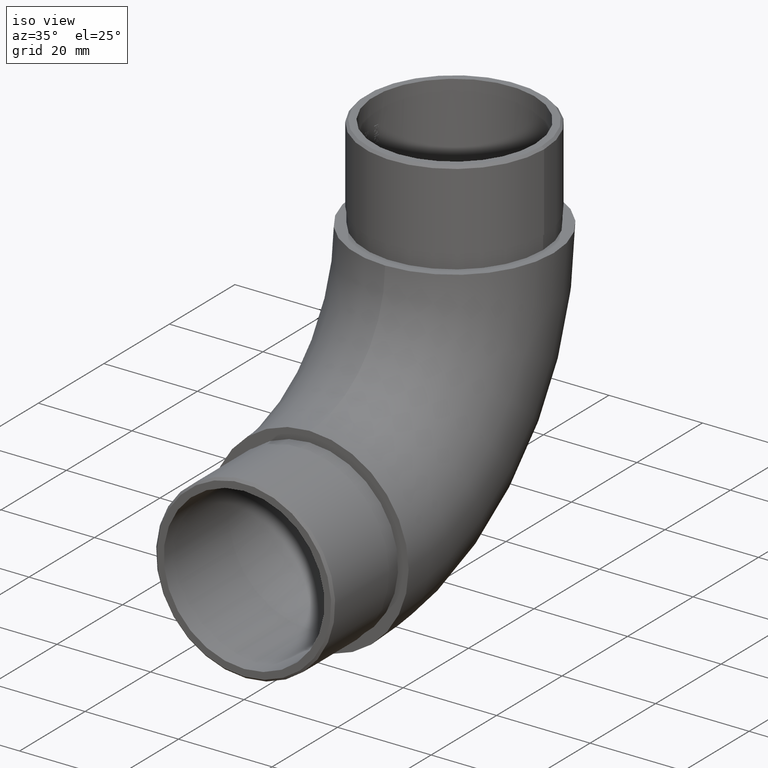
[diagram: clean part render]
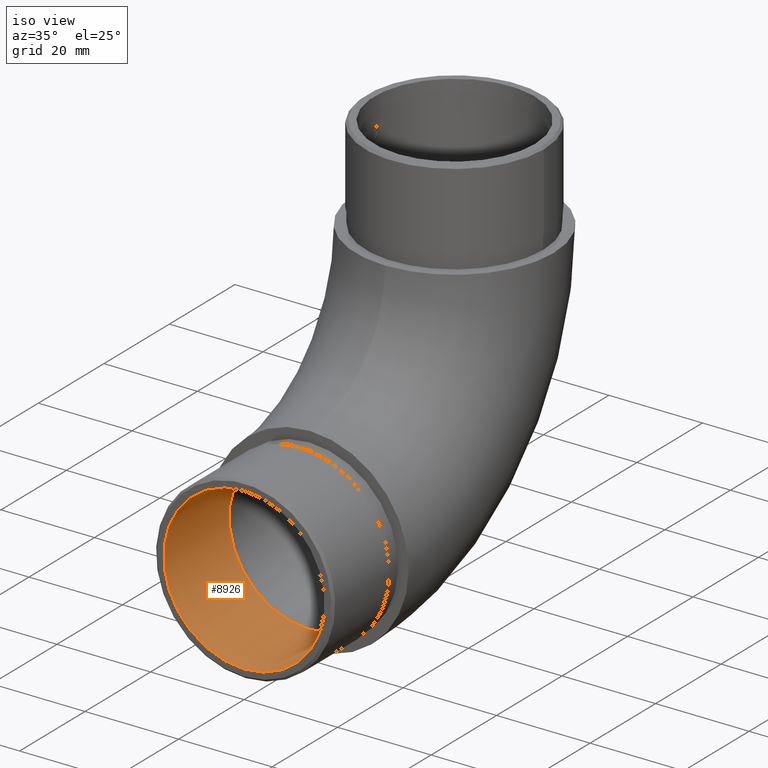
[diagram: same view with one face highlighted and labeled with its STEP entity id]
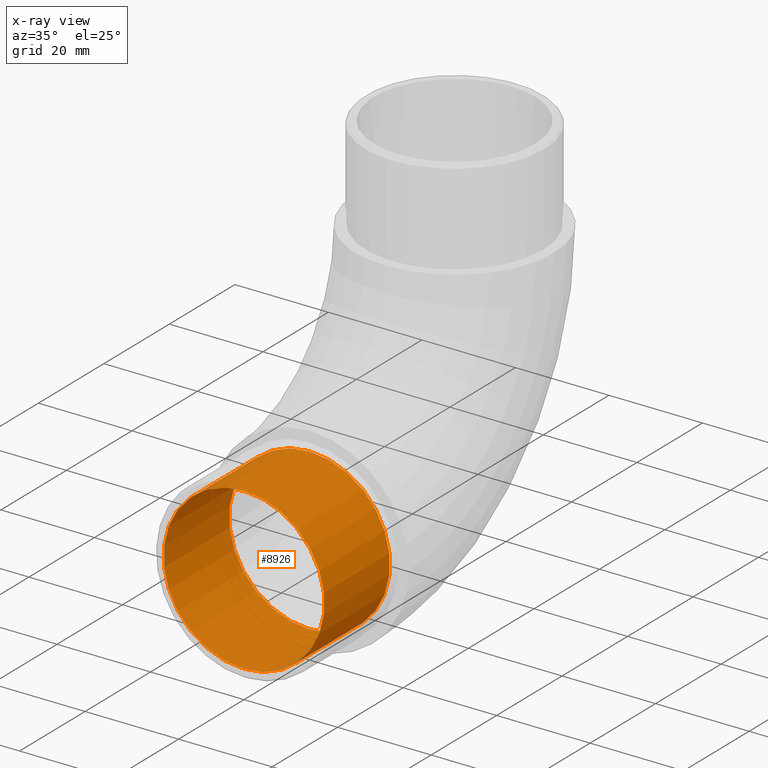
[diagram: x-ray of the same camera — body ghosted, the highlighted face saturated]
A machine part, iso view. The second image highlights one B-rep face of the part: STEP entity #8926.
The next image is the same camera in x-ray: the body ghosted, the highlighted face saturated — about 0% of this face is hidden behind the body in this view.
In plain terms, the highlighted cylindrical surface (bore or boss wall) has radius 17.2 mm, axis along (-0, 1, -0).
Its self-contained STEP definition (entity closure, byte-faithful):
#163 = CIRCLE ( 'NONE', #2696, 17.19999999999999900 ) ;
#341 = DIRECTION ( 'NONE',  ( 0.0000000000000000000, -1.000000000000000000, 0.0000000000000000000 ) ) ;
#433 = AXIS2_PLACEMENT_3D ( 'NONE', #5854, #341, #3186 ) ;
#1006 = DIRECTION ( 'NONE',  ( 0.0000000000000000000, 0.0000000000000000000, 1.000000000000000000 ) ) ;
#1277 = EDGE_CURVE ( 'NONE', #10181, #10181, #163, .T. ) ;
#1818 = EDGE_CURVE ( 'NONE', #7711, #7711, #2361, .T. ) ;
#2361 = CIRCLE ( 'NONE', #433, 17.19999999999999900 ) ;
#2696 = AXIS2_PLACEMENT_3D ( 'NONE', #6664, #9329, #1006 ) ;
#3135 = CARTESIAN_POINT ( 'NONE',  ( 0.0000000000000000000, -3.000000000000000000, 21.20000000000000300 ) ) ;
#3186 = DIRECTION ( 'NONE',  ( 0.0000000000000000000, 0.0000000000000000000, -1.000000000000000000 ) ) ;
#3867 = CARTESIAN_POINT ( 'NONE',  ( 0.0000000000000000000, -20.00000000000000000, 4.000000000000003600 ) ) ;
#4837 = CARTESIAN_POINT ( 'NONE',  ( 0.0000000000000000000, -6.938893903907228400E-015, 38.40000000000000600 ) ) ;
#5854 = CARTESIAN_POINT ( 'NONE',  ( 0.0000000000000000000, -20.00000000000000000, 21.20000000000000300 ) ) ;
#6390 = AXIS2_PLACEMENT_3D ( 'NONE', #3135, #6878, #8518 ) ;
#6426 = FACE_OUTER_BOUND ( 'NONE', #8714, .T. ) ;
#6664 = CARTESIAN_POINT ( 'NONE',  ( 0.0000000000000000000, -6.938893903907228400E-015, 21.20000000000000300 ) ) ;
#6878 = DIRECTION ( 'NONE',  ( -0.0000000000000000000, 1.000000000000000000, -0.0000000000000000000 ) ) ;
#7283 = CYLINDRICAL_SURFACE ( 'NONE', #6390, 17.19999999999999900 ) ;
#7711 = VERTEX_POINT ( 'NONE', #3867 ) ;
#8518 = DIRECTION ( 'NONE',  ( 0.0000000000000000000, 0.0000000000000000000, 1.000000000000000000 ) ) ;
#8551 = ORIENTED_EDGE ( 'NONE', *, *, #1277, .T. ) ;
#8714 = EDGE_LOOP ( 'NONE', ( #11600 ) ) ;
#8926 = ADVANCED_FACE ( 'NONE', ( #9322, #6426 ), #7283, .F. ) ;
#9322 = FACE_OUTER_BOUND ( 'NONE', #11119, .T. ) ;
#9329 = DIRECTION ( 'NONE',  ( 0.0000000000000000000, 1.000000000000000000, 0.0000000000000000000 ) ) ;
#10181 = VERTEX_POINT ( 'NONE', #4837 ) ;
#11119 = EDGE_LOOP ( 'NONE', ( #8551 ) ) ;
#11600 = ORIENTED_EDGE ( 'NONE', *, *, #1818, .T. ) ;